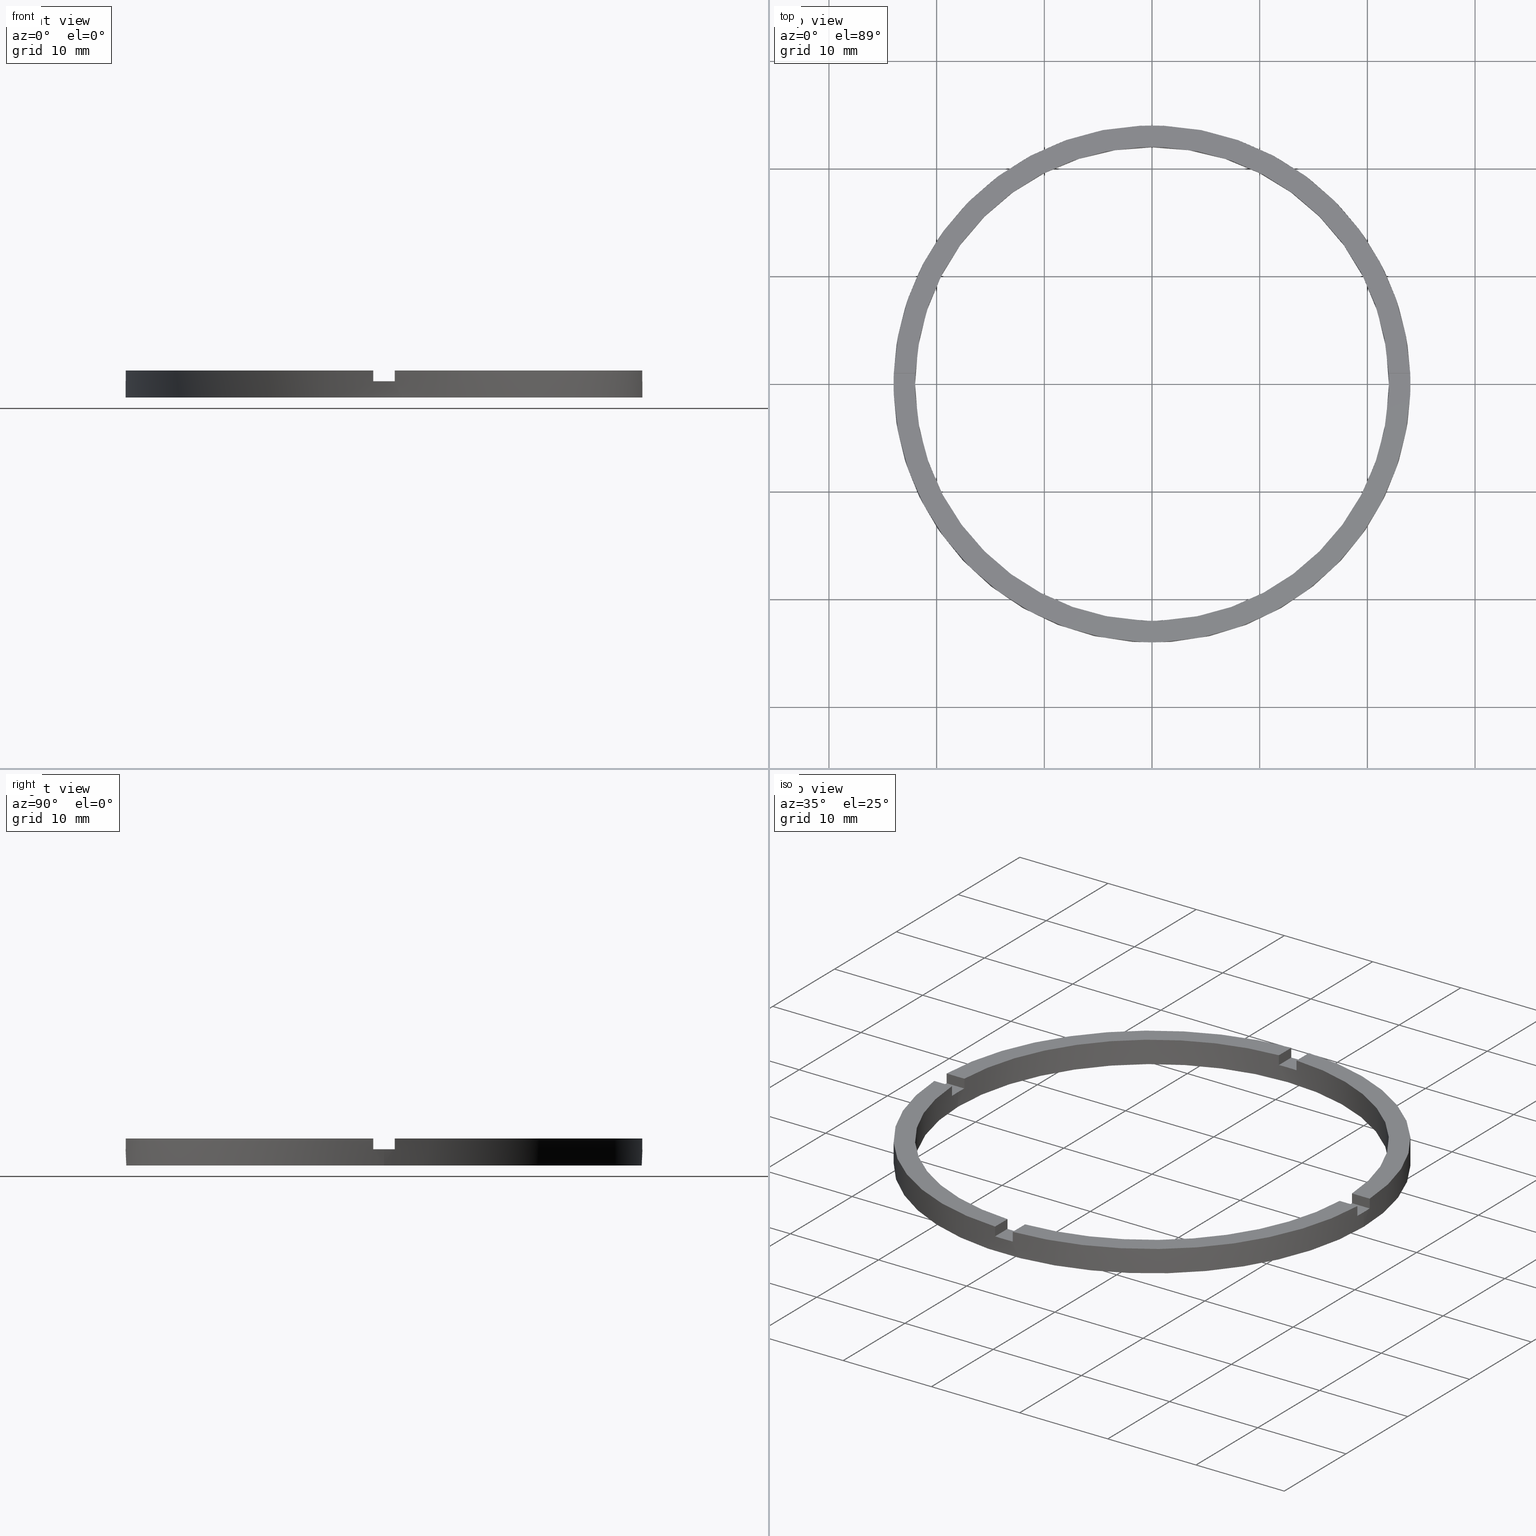
[diagram: canonical four-view strip — front | top / right | iso, engineering-drawing reading convention]
A machine part, canonical four-view strip (front | top / right | iso — engineering-drawing reading convention). The complete STEP part file that produces these views, byte-faithful:
ISO-10303-21;
HEADER;
FILE_DESCRIPTION (( 'STEP AP203' ),
    '1' );
FILE_NAME ('514101.step',
    '2024-12-26T02:37:36',
    ( 'MSI' ),
    ( '' ),
    'SwSTEP 2.0',
    'SolidWorks 2020',
    '' );
FILE_SCHEMA (( 'CONFIG_CONTROL_DESIGN' ));
ENDSEC;

DATA;
#1 = EDGE_LOOP ( 'NONE', ( #268, #686, #16, #49 ) ) ;
#2 = APPROVAL_DATE_TIME ( #488, #439 ) ;
#3 = CARTESIAN_POINT ( 'NONE',  ( -23.97915761656360445, -1.000000000000025757, 1.500000000000000000 ) ) ;
#4 = DIRECTION ( 'NONE',  ( 1.000000000000000000, 0.000000000000000000, 0.000000000000000000 ) ) ;
#5 = ORIENTED_EDGE ( 'NONE', *, *, #163, .F. ) ;
#6 = ORIENTED_EDGE ( 'NONE', *, *, #497, .F. ) ;
#7 = DIRECTION ( 'NONE',  ( -0.000000000000000000, -0.000000000000000000, -1.000000000000000000 ) ) ;
#8 = CARTESIAN_POINT ( 'NONE',  ( 0.000000000000000000, 0.000000000000000000, 1.500000000000000000 ) ) ;
#9 = CARTESIAN_POINT ( 'NONE',  ( 0.000000000000000000, 0.000000000000000000, 1.500000000000000000 ) ) ;
#10 = ORIENTED_EDGE ( 'NONE', *, *, #432, .T. ) ;
#11 = DIRECTION ( 'NONE',  ( 1.000000000000000000, 0.000000000000000000, -0.000000000000000000 ) ) ;
#12 = ADVANCED_FACE ( 'NONE', ( #549 ), #454, .F. ) ;
#13 = ORIENTED_EDGE ( 'NONE', *, *, #168, .F. ) ;
#14 = AXIS2_PLACEMENT_3D ( 'NONE', #671, #727, #461 ) ;
#15 = DIRECTION ( 'NONE',  ( -1.000000000000000000, 0.000000000000000000, 0.000000000000000000 ) ) ;
#16 = ORIENTED_EDGE ( 'NONE', *, *, #201, .F. ) ;
#17 = ORIENTED_EDGE ( 'NONE', *, *, #241, .F. ) ;
#18 = ORIENTED_EDGE ( 'NONE', *, *, #119, .F. ) ;
#19 = PRODUCT_RELATED_PRODUCT_CATEGORY ( 'detail', '', ( #725 ) ) ;
#20 = VERTEX_POINT ( 'NONE', #619 ) ;
#21 = CLOSED_SHELL ( 'NONE', ( #91, #144, #751, #493, #334, #107, #394, #263, #704, #662, #276, #659, #12, #351, #685, #39, #384, #655, #438, #445, #739 ) ) ;
#22 = ORIENTED_EDGE ( 'NONE', *, *, #511, .F. ) ;
#23 = VERTEX_POINT ( 'NONE', #3 ) ;
#24 = DIRECTION ( 'NONE',  ( -0.000000000000000000, 0.000000000000000000, 1.000000000000000000 ) ) ;
#25 = EDGE_LOOP ( 'NONE', ( #179, #390, #568, #711, #429, #437, #61, #478, #290, #676, #55, #783 ) ) ;
#26 = AXIS2_PLACEMENT_3D ( 'NONE', #609, #735, #311 ) ;
#27 = CARTESIAN_POINT ( 'NONE',  ( -1.000000000000025535, 21.97726097583590388, 2.500000000000000000 ) ) ;
#28 = DIRECTION ( 'NONE',  ( 1.000000000000000000, 0.000000000000000000, 0.000000000000000000 ) ) ;
#29 = ORIENTED_EDGE ( 'NONE', *, *, #466, .F. ) ;
#30 = CARTESIAN_POINT ( 'NONE',  ( -21.97726097583591098, 0.9999999999999744649, 2.500000000000000000 ) ) ;
#31 = EDGE_CURVE ( 'NONE', #273, #410, #32, .T. ) ;
#32 = CIRCLE ( 'NONE', #208, 22.00000000000000000 ) ;
#33 = ORIENTED_EDGE ( 'NONE', *, *, #119, .T. ) ;
#34 = DIRECTION ( 'NONE',  ( 0.000000000000000000, 0.000000000000000000, 1.000000000000000000 ) ) ;
#35 = APPLICATION_CONTEXT ( 'configuration controlled 3d designs of mechanical parts and assemblies' ) ;
#36 = ORIENTED_EDGE ( 'NONE', *, *, #678, .T. ) ;
#37 = DIRECTION ( 'NONE',  ( 1.000000000000000000, 0.000000000000000000, 0.000000000000000000 ) ) ;
#38 = ORIENTED_EDGE ( 'NONE', *, *, #746, .F. ) ;
#39 = ADVANCED_FACE ( 'NONE', ( #70 ), #587, .F. ) ;
#40 = EDGE_CURVE ( 'NONE', #572, #52, #575, .T. ) ;
#41 = DIRECTION ( 'NONE',  ( -1.000000000000000000, -1.301042606982605074E-16, 0.000000000000000000 ) ) ;
#42 = ORIENTED_EDGE ( 'NONE', *, *, #489, .F. ) ;
#43 = DIRECTION ( 'NONE',  ( -1.000000000000000000, -1.734723475976806848E-16, 0.000000000000000000 ) ) ;
#44 = ORIENTED_EDGE ( 'NONE', *, *, #184, .F. ) ;
#45 = LINE ( 'NONE', #695, #289 ) ;
#46 = EDGE_CURVE ( 'NONE', #228, #709, #305, .T. ) ;
#47 = VECTOR ( 'NONE', #166, 1000.000000000000000 ) ;
#48 = ORIENTED_EDGE ( 'NONE', *, *, #636, .T. ) ;
#49 = ORIENTED_EDGE ( 'NONE', *, *, #163, .T. ) ;
#50 = ORIENTED_EDGE ( 'NONE', *, *, #691, .T. ) ;
#51 = ORIENTED_EDGE ( 'NONE', *, *, #46, .T. ) ;
#52 = VERTEX_POINT ( 'NONE', #202 ) ;
#53 = FACE_OUTER_BOUND ( 'NONE', #279, .T. ) ;
#54 = AXIS2_PLACEMENT_3D ( 'NONE', #133, #177, #306 ) ;
#55 = ORIENTED_EDGE ( 'NONE', *, *, #641, .T. ) ;
#56 = CIRCLE ( 'NONE', #388, 22.00000000000000000 ) ;
#57 = AXIS2_PLACEMENT_3D ( 'NONE', #776, #65, #673 ) ;
#58 = CIRCLE ( 'NONE', #705, 22.00000000000000000 ) ;
#59 = EDGE_CURVE ( 'NONE', #395, #780, #296, .T. ) ;
#60 = ORIENTED_EDGE ( 'NONE', *, *, #59, .T. ) ;
#61 = ORIENTED_EDGE ( 'NONE', *, *, #71, .T. ) ;
#62 = CC_DESIGN_PERSON_AND_ORGANIZATION_ASSIGNMENT ( #752, #765, ( #407 ) ) ;
#63 = DIRECTION ( 'NONE',  ( 0.000000000000000000, 0.000000000000000000, 1.000000000000000000 ) ) ;
#64 = ORIENTED_EDGE ( 'NONE', *, *, #201, .T. ) ;
#65 = DIRECTION ( 'NONE',  ( 1.000000000000000000, -0.000000000000000000, 0.000000000000000000 ) ) ;
#66 = ORIENTED_EDGE ( 'NONE', *, *, #597, .T. ) ;
#67 = ORIENTED_EDGE ( 'NONE', *, *, #613, .F. ) ;
#68 = ORIENTED_EDGE ( 'NONE', *, *, #775, .T. ) ;
#69 = ORIENTED_EDGE ( 'NONE', *, *, #600, .T. ) ;
#70 = FACE_OUTER_BOUND ( 'NONE', #162, .T. ) ;
#71 = EDGE_CURVE ( 'NONE', #303, #392, #45, .T. ) ;
#72 = ORIENTED_EDGE ( 'NONE', *, *, #761, .T. ) ;
#73 = AXIS2_PLACEMENT_3D ( 'NONE', #150, #385, #467 ) ;
#74 = DIRECTION ( 'NONE',  ( 0.000000000000000000, 0.000000000000000000, 1.000000000000000000 ) ) ;
#75 = LINE ( 'NONE', #214, #596 ) ;
#76 = CIRCLE ( 'NONE', #651, 24.00000000000000355 ) ;
#77 = LINE ( 'NONE', #654, #333 ) ;
#78 = LINE ( 'NONE', #170, #337 ) ;
#79 = DIRECTION ( 'NONE',  ( 1.000000000000000000, 0.000000000000000000, -0.000000000000000000 ) ) ;
#80 = FACE_OUTER_BOUND ( 'NONE', #476, .T. ) ;
#81 = CIRCLE ( 'NONE', #14, 24.00000000000000355 ) ;
#82 = EDGE_LOOP ( 'NONE', ( #719, #183, #517, #443 ) ) ;
#83 = VECTOR ( 'NONE', #616, 1000.000000000000000 ) ;
#84 = DIRECTION ( 'NONE',  ( 1.000000000000000000, 0.000000000000000000, 0.000000000000000000 ) ) ;
#85 = CIRCLE ( 'NONE', #557, 24.00000000000000355 ) ;
#86 = CARTESIAN_POINT ( 'NONE',  ( 0.000000000000000000, 0.000000000000000000, 1.500000000000000000 ) ) ;
#87 = VECTOR ( 'NONE', #741, 1000.000000000000000 ) ;
#88 = VECTOR ( 'NONE', #149, 1000.000000000000000 ) ;
#89 = PLANE ( 'NONE',  #762 ) ;
#90 = CIRCLE ( 'NONE', #196, 24.00000000000000355 ) ;
#91 = ADVANCED_FACE ( 'NONE', ( #297 ), #570, .F. ) ;
#92 = CIRCLE ( 'NONE', #730, 24.00000000000000355 ) ;
#93 = PLANE ( 'NONE',  #73 ) ;
#94 = EDGE_CURVE ( 'NONE', #395, #410, #299, .T. ) ;
#95 = DIRECTION ( 'NONE',  ( 1.000000000000000000, 0.000000000000000000, -0.000000000000000000 ) ) ;
#96 = VECTOR ( 'NONE', #464, 1000.000000000000000 ) ;
#97 = FACE_OUTER_BOUND ( 'NONE', #82, .T. ) ;
#98 = LINE ( 'NONE', #601, #350 ) ;
#99 = FACE_BOUND ( 'NONE', #307, .T. ) ;
#100 = CARTESIAN_POINT ( 'NONE',  ( 23.97915761656361155, 0.9999999999998423483, 1.500000000000000000 ) ) ;
#101 = VECTOR ( 'NONE', #581, 1000.000000000000000 ) ;
#102 = VECTOR ( 'NONE', #165, 1000.000000000000000 ) ;
#103 = LINE ( 'NONE', #689, #87 ) ;
#104 = CIRCLE ( 'NONE', #462, 24.00000000000000355 ) ;
#105 = CARTESIAN_POINT ( 'NONE',  ( -1.000000000000025979, 14.00000000000000355, 1.500000000000000000 ) ) ;
#106 = CIRCLE ( 'NONE', #453, 22.00000000000000000 ) ;
#107 = ADVANCED_FACE ( 'NONE', ( #53 ), #749, .T. ) ;
#108 = FACE_OUTER_BOUND ( 'NONE', #1, .T. ) ;
#109 = LINE ( 'NONE', #323, #363 ) ;
#110 = CIRCLE ( 'NONE', #736, 22.00000000000000000 ) ;
#111 = CC_DESIGN_DATE_AND_TIME_ASSIGNMENT ( #483, #412, ( #407 ) ) ;
#112 = DIRECTION ( 'NONE',  ( -1.000000000000000000, -1.734723475976806848E-16, 0.000000000000000000 ) ) ;
#113 = LINE ( 'NONE', #159, #642 ) ;
#114 = VECTOR ( 'NONE', #246, 1000.000000000000000 ) ;
#115 = VECTOR ( 'NONE', #112, 1000.000000000000000 ) ;
#116 = DIRECTION ( 'NONE',  ( 0.000000000000000000, 0.000000000000000000, 1.000000000000000000 ) ) ;
#117 = MECHANICAL_CONTEXT ( 'NONE', #35, 'mechanical' ) ;
#118 = VECTOR ( 'NONE', #151, 1000.000000000000000 ) ;
#119 = EDGE_CURVE ( 'NONE', #140, #327, #573, .T. ) ;
#120 = DIRECTION ( 'NONE',  ( 1.000000000000000000, 4.336808689942017120E-17, 0.000000000000000000 ) ) ;
#121 = FACE_OUTER_BOUND ( 'NONE', #145, .T. ) ;
#122 = VECTOR ( 'NONE', #732, 1000.000000000000000 ) ;
#123 = LINE ( 'NONE', #341, #114 ) ;
#124 = CARTESIAN_POINT ( 'NONE',  ( 0.000000000000000000, 0.000000000000000000, 0.000000000000000000 ) ) ;
#125 = DIRECTION ( 'NONE',  ( 1.000000000000000000, 0.000000000000000000, -0.000000000000000000 ) ) ;
#126 = CARTESIAN_POINT ( 'NONE',  ( 0.000000000000000000, 0.000000000000000000, 2.500000000000000000 ) ) ;
#127 = CARTESIAN_POINT ( 'NONE',  ( 0.000000000000000000, 0.000000000000000000, 2.500000000000000000 ) ) ;
#128 = EDGE_CURVE ( 'NONE', #321, #567, #56, .T. ) ;
#129 = APPROVAL_ROLE ( '' ) ;
#130 = EDGE_CURVE ( 'NONE', #427, #132, #58, .T. ) ;
#131 = DIRECTION ( 'NONE',  ( -1.301042606982605074E-16, 1.000000000000000000, -0.000000000000000000 ) ) ;
#132 = VERTEX_POINT ( 'NONE', #408 ) ;
#133 = CARTESIAN_POINT ( 'NONE',  ( 0.000000000000000000, 0.000000000000000000, 1.500000000000000000 ) ) ;
#134 = ORIENTED_EDGE ( 'NONE', *, *, #270, .T. ) ;
#135 =( GEOMETRIC_REPRESENTATION_CONTEXT ( 3 ) GLOBAL_UNCERTAINTY_ASSIGNED_CONTEXT ( ( #546 ) ) GLOBAL_UNIT_ASSIGNED_CONTEXT ( ( #292, #605, #373 ) ) REPRESENTATION_CONTEXT ( 'NONE', 'WORKASPACE' ) );
#136 = EDGE_CURVE ( 'NONE', #228, #146, #312, .T. ) ;
#137 = ORIENTED_EDGE ( 'NONE', *, *, #31, .T. ) ;
#138 = CARTESIAN_POINT ( 'NONE',  ( -24.00000000000000355, 0.000000000000000000, 0.000000000000000000 ) ) ;
#139 = AXIS2_PLACEMENT_3D ( 'NONE', #504, #41, #442 ) ;
#140 = VERTEX_POINT ( 'NONE', #420 ) ;
#141 = ORIENTED_EDGE ( 'NONE', *, *, #613, .T. ) ;
#142 = DIRECTION ( 'NONE',  ( -1.000000000000000000, 0.000000000000000000, 0.000000000000000000 ) ) ;
#143 = EDGE_LOOP ( 'NONE', ( #271, #558, #538, #535, #38, #304, #516, #428, #6, #512, #5, #518 ) ) ;
#144 = ADVANCED_FACE ( 'NONE', ( #578 ), #580, .T. ) ;
#145 = EDGE_LOOP ( 'NONE', ( #189, #714, #715, #523, #563, #51 ) ) ;
#146 = VERTEX_POINT ( 'NONE', #418 ) ;
#147 = CARTESIAN_POINT ( 'NONE',  ( 22.00000000000000000, 2.694222958124176809E-15, 1.500000000000000000 ) ) ;
#148 = DIRECTION ( 'NONE',  ( 1.000000000000000000, 0.000000000000000000, 0.000000000000000000 ) ) ;
#149 = DIRECTION ( 'NONE',  ( -0.000000000000000000, -0.000000000000000000, -1.000000000000000000 ) ) ;
#150 = CARTESIAN_POINT ( 'NONE',  ( -1.000000000000025979, 14.00000000000000355, 1.500000000000000000 ) ) ;
#151 = DIRECTION ( 'NONE',  ( 0.000000000000000000, 0.000000000000000000, 1.000000000000000000 ) ) ;
#152 = DIRECTION ( 'NONE',  ( 0.000000000000000000, 0.000000000000000000, 1.000000000000000000 ) ) ;
#153 = DIRECTION ( 'NONE',  ( 1.000000000000000000, 0.000000000000000000, 0.000000000000000000 ) ) ;
#154 = DIRECTION ( 'NONE',  ( -1.734723475976806848E-16, 1.000000000000000000, 0.000000000000000000 ) ) ;
#155 = CARTESIAN_POINT ( 'NONE',  ( 0.9999999999999735767, 23.97915761656360090, 2.500000000000000000 ) ) ;
#156 = PLANE ( 'NONE',  #139 ) ;
#157 = DIRECTION ( 'NONE',  ( 1.000000000000000000, 0.000000000000000000, 0.000000000000000000 ) ) ;
#158 = EDGE_CURVE ( 'NONE', #564, #23, #361, .T. ) ;
#159 = CARTESIAN_POINT ( 'NONE',  ( -22.00000000000000000, 0.000000000000000000, 2.500000000000000000 ) ) ;
#160 = AXIS2_PLACEMENT_3D ( 'NONE', #530, #376, #417 ) ;
#161 = ORIENTED_EDGE ( 'NONE', *, *, #40, .F. ) ;
#162 = EDGE_LOOP ( 'NONE', ( #64, #182, #527, #42 ) ) ;
#163 = EDGE_CURVE ( 'NONE', #747, #552, #81, .T. ) ;
#164 = PERSON_AND_ORGANIZATION_ROLE ( 'design_owner' ) ;
#165 = DIRECTION ( 'NONE',  ( -0.000000000000000000, -0.000000000000000000, -1.000000000000000000 ) ) ;
#166 = DIRECTION ( 'NONE',  ( -0.000000000000000000, -0.000000000000000000, -1.000000000000000000 ) ) ;
#167 = DIRECTION ( 'NONE',  ( 1.000000000000000000, 0.000000000000000000, 0.000000000000000000 ) ) ;
#168 = EDGE_CURVE ( 'NONE', #389, #185, #92, .T. ) ;
#169 = VERTEX_POINT ( 'NONE', #539 ) ;
#170 = CARTESIAN_POINT ( 'NONE',  ( 0.9999999999998393507, -23.97915761656361155, 2.500000000000000000 ) ) ;
#171 = CARTESIAN_POINT ( 'NONE',  ( 0.000000000000000000, 0.000000000000000000, 2.500000000000000000 ) ) ;
#172 = DIRECTION ( 'NONE',  ( 0.000000000000000000, 0.000000000000000000, 1.000000000000000000 ) ) ;
#173 = EDGE_CURVE ( 'NONE', #215, #224, #615, .T. ) ;
#174 = ORIENTED_EDGE ( 'NONE', *, *, #425, .F. ) ;
#175 = DIRECTION ( 'NONE',  ( 4.336808689942017120E-17, -1.000000000000000000, 0.000000000000000000 ) ) ;
#176 = DIRECTION ( 'NONE',  ( -0.000000000000000000, -0.000000000000000000, -1.000000000000000000 ) ) ;
#177 = DIRECTION ( 'NONE',  ( 0.000000000000000000, 0.000000000000000000, 1.000000000000000000 ) ) ;
#178 = EDGE_CURVE ( 'NONE', #215, #716, #104, .T. ) ;
#179 = ORIENTED_EDGE ( 'NONE', *, *, #536, .F. ) ;
#180 = ORIENTED_EDGE ( 'NONE', *, *, #423, .F. ) ;
#181 = DIRECTION ( 'NONE',  ( 0.000000000000000000, -0.000000000000000000, 1.000000000000000000 ) ) ;
#182 = ORIENTED_EDGE ( 'NONE', *, *, #466, .T. ) ;
#183 = ORIENTED_EDGE ( 'NONE', *, *, #554, .T. ) ;
#184 = EDGE_CURVE ( 'NONE', #224, #591, #75, .T. ) ;
#185 = VERTEX_POINT ( 'NONE', #138 ) ;
#186 = CARTESIAN_POINT ( 'NONE',  ( 0.000000000000000000, 0.000000000000000000, 1.500000000000000000 ) ) ;
#187 = ORIENTED_EDGE ( 'NONE', *, *, #378, .F. ) ;
#188 = AXIS2_PLACEMENT_3D ( 'NONE', #402, #764, #745 ) ;
#189 = ORIENTED_EDGE ( 'NONE', *, *, #401, .T. ) ;
#190 = CARTESIAN_POINT ( 'NONE',  ( -1.000000000000025535, 21.97726097583590388, 1.500000000000000000 ) ) ;
#191 = CC_DESIGN_PERSON_AND_ORGANIZATION_ASSIGNMENT ( #768, #284, ( #702 ) ) ;
#192 = DIRECTION ( 'NONE',  ( 1.000000000000000000, 1.734723475976806848E-16, 0.000000000000000000 ) ) ;
#193 = AXIS2_PLACEMENT_3D ( 'NONE', #8, #181, #79 ) ;
#194 = EDGE_CURVE ( 'NONE', #470, #392, #592, .T. ) ;
#195 = CARTESIAN_POINT ( 'NONE',  ( -1.000000000000160538, -21.97726097583589677, 1.500000000000000000 ) ) ;
#196 = AXIS2_PLACEMENT_3D ( 'NONE', #708, #701, #37 ) ;
#197 = CARTESIAN_POINT ( 'NONE',  ( 21.97726097583591809, 0.9999999999998421263, 1.500000000000000000 ) ) ;
#198 = DIRECTION ( 'NONE',  ( 0.000000000000000000, 0.000000000000000000, 1.000000000000000000 ) ) ;
#199 = DIRECTION ( 'NONE',  ( 0.000000000000000000, 0.000000000000000000, 1.000000000000000000 ) ) ;
#200 = CARTESIAN_POINT ( 'NONE',  ( 0.000000000000000000, 0.000000000000000000, 2.500000000000000000 ) ) ;
#201 = EDGE_CURVE ( 'NONE', #747, #668, #335, .T. ) ;
#202 = CARTESIAN_POINT ( 'NONE',  ( -21.97726097583590743, -1.000000000000025535, 1.500000000000000000 ) ) ;
#203 = APPROVAL_STATUS ( 'not_yet_approved' ) ;
#204 = DIRECTION ( 'NONE',  ( 1.000000000000000000, 0.000000000000000000, 0.000000000000000000 ) ) ;
#205 = DIRECTION ( 'NONE',  ( 1.000000000000000000, 0.000000000000000000, 0.000000000000000000 ) ) ;
#206 = CARTESIAN_POINT ( 'NONE',  ( -23.97915761656360445, -1.000000000000025757, 2.500000000000000000 ) ) ;
#207 = AXIS2_PLACEMENT_3D ( 'NONE', #411, #210, #366 ) ;
#208 = AXIS2_PLACEMENT_3D ( 'NONE', #778, #444, #281 ) ;
#209 = CARTESIAN_POINT ( 'NONE',  ( -1.000000000000025979, 23.97915761656360445, 2.500000000000000000 ) ) ;
#210 = DIRECTION ( 'NONE',  ( 0.000000000000000000, 0.000000000000000000, 1.000000000000000000 ) ) ;
#211 = DIRECTION ( 'NONE',  ( 0.000000000000000000, -0.000000000000000000, 1.000000000000000000 ) ) ;
#212 = CC_DESIGN_APPROVAL ( #439, ( #262 ) ) ;
#213 = EDGE_LOOP ( 'NONE', ( #134, #431, #247, #180 ) ) ;
#214 = CARTESIAN_POINT ( 'NONE',  ( 0.9999999999998391287, -21.97726097583591809, 2.500000000000000000 ) ) ;
#215 = VERTEX_POINT ( 'NONE', #682 ) ;
#216 = LOCAL_TIME ( 10, 37, 36.00000000000000000, #220 ) ;
#217 = CC_DESIGN_PERSON_AND_ORGANIZATION_ASSIGNMENT ( #777, #164, ( #725 ) ) ;
#218 = CARTESIAN_POINT ( 'NONE',  ( 0.9999999999998380185, -14.00000000000018474, 1.500000000000000000 ) ) ;
#219 = CARTESIAN_POINT ( 'NONE',  ( 0.000000000000000000, 0.000000000000000000, 2.500000000000000000 ) ) ;
#220 = COORDINATED_UNIVERSAL_TIME_OFFSET ( 8, 0, .AHEAD. ) ;
#221 = EDGE_CURVE ( 'NONE', #481, #583, #76, .T. ) ;
#222 = VERTEX_POINT ( 'NONE', #195 ) ;
#223 = PERSON_AND_ORGANIZATION ( #422, #767 ) ;
#224 = VERTEX_POINT ( 'NONE', #556 ) ;
#225 = EDGE_LOOP ( 'NONE', ( #50, #325, #398, #67, #69, #161, #66, #294, #413, #44, #293, #419 ) ) ;
#226 = CARTESIAN_POINT ( 'NONE',  ( -1.000000000000025535, 23.97915761656360090, 2.500000000000000000 ) ) ;
#227 = CARTESIAN_POINT ( 'NONE',  ( 0.9999999999998380185, -14.00000000000018474, 2.500000000000000000 ) ) ;
#228 = VERTEX_POINT ( 'NONE', #480 ) ;
#229 = DIRECTION ( 'NONE',  ( 0.000000000000000000, 0.000000000000000000, 1.000000000000000000 ) ) ;
#230 = COORDINATED_UNIVERSAL_TIME_OFFSET ( 8, 0, .AHEAD. ) ;
#231 = COORDINATED_UNIVERSAL_TIME_OFFSET ( 8, 0, .AHEAD. ) ;
#232 = APPROVAL_PERSON_ORGANIZATION ( #235, #344, #660 ) ;
#233 = APPROVAL_PERSON_ORGANIZATION ( #760, #439, #129 ) ;
#234 = CARTESIAN_POINT ( 'NONE',  ( -23.97915761656360445, 0.9999999999999742428, 2.500000000000000000 ) ) ;
#235 = PERSON_AND_ORGANIZATION ( #422, #767 ) ;
#236 = DIRECTION ( 'NONE',  ( 0.000000000000000000, 0.000000000000000000, 1.000000000000000000 ) ) ;
#237 = CALENDAR_DATE ( 2024, 26, 12 ) ;
#238 = CARTESIAN_POINT ( 'NONE',  ( -1.000000000000025979, 14.00000000000000355, 2.500000000000000000 ) ) ;
#239 = DATE_AND_TIME ( #472, #774 ) ;
#240 = CARTESIAN_POINT ( 'NONE',  ( 0.000000000000000000, 0.000000000000000000, 2.500000000000000000 ) ) ;
#241 = EDGE_CURVE ( 'NONE', #140, #757, #625, .T. ) ;
#242 = LOCAL_TIME ( 10, 37, 36.00000000000000000, #509 ) ;
#243 = CARTESIAN_POINT ( 'NONE',  ( -1.000000000000160538, -21.97726097583589677, 2.500000000000000000 ) ) ;
#244 = ORIENTED_EDGE ( 'NONE', *, *, #446, .F. ) ;
#245 = PERSON_AND_ORGANIZATION ( #422, #767 ) ;
#246 = DIRECTION ( 'NONE',  ( 0.000000000000000000, 1.000000000000000000, 0.000000000000000000 ) ) ;
#247 = ORIENTED_EDGE ( 'NONE', *, *, #761, .F. ) ;
#248 = LOCAL_TIME ( 10, 37, 36.00000000000000000, #230 ) ;
#249 = AXIS2_PLACEMENT_3D ( 'NONE', #498, #211, #157 ) ;
#250 = ORIENTED_EDGE ( 'NONE', *, *, #473, .F. ) ;
#251 = CALENDAR_DATE ( 2024, 26, 12 ) ;
#252 = CARTESIAN_POINT ( 'NONE',  ( 0.000000000000000000, 0.000000000000000000, 2.500000000000000000 ) ) ;
#253 = ORIENTED_EDGE ( 'NONE', *, *, #425, .T. ) ;
#254 = CARTESIAN_POINT ( 'NONE',  ( 0.9999999999999740208, 14.00000000000000355, 1.500000000000000000 ) ) ;
#255 = ORIENTED_EDGE ( 'NONE', *, *, #403, .F. ) ;
#256 = CARTESIAN_POINT ( 'NONE',  ( 0.9999999999998386846, -21.97726097583591454, 1.500000000000000000 ) ) ;
#257 = ORIENTED_EDGE ( 'NONE', *, *, #542, .T. ) ;
#258 = EDGE_LOOP ( 'NONE', ( #318, #526, #528, #187 ) ) ;
#259 = AXIS2_PLACEMENT_3D ( 'NONE', #495, #699, #455 ) ;
#260 = DIRECTION ( 'NONE',  ( 1.734723475976806848E-16, -1.000000000000000000, 0.000000000000000000 ) ) ;
#261 = EDGE_CURVE ( 'NONE', #757, #552, #103, .T. ) ;
#262 = PRODUCT_DEFINITION_FORMATION_WITH_SPECIFIED_SOURCE ( '�κ�', '', #725, .NOT_KNOWN. ) ;
#263 = ADVANCED_FACE ( 'NONE', ( #627 ), #360, .T. ) ;
#264 = CARTESIAN_POINT ( 'NONE',  ( 13.99999999999999822, -1.000000000000158096, 1.500000000000000000 ) ) ;
#265 = ORIENTED_EDGE ( 'NONE', *, *, #672, .T. ) ;
#266 = ORIENTED_EDGE ( 'NONE', *, *, #724, .T. ) ;
#267 = CARTESIAN_POINT ( 'NONE',  ( 0.000000000000000000, 0.000000000000000000, 2.500000000000000000 ) ) ;
#268 = ORIENTED_EDGE ( 'NONE', *, *, #672, .F. ) ;
#269 = AXIS2_PLACEMENT_3D ( 'NONE', #656, #329, #387 ) ;
#270 = EDGE_CURVE ( 'NONE', #766, #572, #624, .T. ) ;
#271 = ORIENTED_EDGE ( 'NONE', *, *, #221, .F. ) ;
#272 = ORIENTED_EDGE ( 'NONE', *, *, #497, .T. ) ;
#273 = VERTEX_POINT ( 'NONE', #27 ) ;
#274 = ORIENTED_EDGE ( 'NONE', *, *, #178, .T. ) ;
#275 = CARTESIAN_POINT ( 'NONE',  ( -23.97915761656360445, 0.9999999999999742428, 1.500000000000000000 ) ) ;
#276 = ADVANCED_FACE ( 'NONE', ( #332 ), #89, .F. ) ;
#277 = ORIENTED_EDGE ( 'NONE', *, *, #406, .F. ) ;
#278 = CARTESIAN_POINT ( 'NONE',  ( -1.000000000000025535, 23.97915761656360090, 1.500000000000000000 ) ) ;
#279 = EDGE_LOOP ( 'NONE', ( #308, #551, #524, #68 ) ) ;
#280 = EDGE_LOOP ( 'NONE', ( #272, #586, #18, #692 ) ) ;
#281 = DIRECTION ( 'NONE',  ( 1.000000000000000000, 0.000000000000000000, 0.000000000000000000 ) ) ;
#282 = CARTESIAN_POINT ( 'NONE',  ( 0.9999999999999735767, 23.97915761656360090, 1.500000000000000000 ) ) ;
#283 = CARTESIAN_POINT ( 'NONE',  ( -23.97915761656360445, -1.000000000000025757, 2.500000000000000000 ) ) ;
#284 = PERSON_AND_ORGANIZATION_ROLE ( 'creator' ) ;
#285 = DIRECTION ( 'NONE',  ( -0.000000000000000000, -0.000000000000000000, -1.000000000000000000 ) ) ;
#286 = CARTESIAN_POINT ( 'NONE',  ( 0.000000000000000000, 0.000000000000000000, 1.500000000000000000 ) ) ;
#287 = EDGE_CURVE ( 'NONE', #185, #389, #358, .T. ) ;
#288 = AXIS2_PLACEMENT_3D ( 'NONE', #240, #569, #317 ) ;
#289 = VECTOR ( 'NONE', #604, 1000.000000000000000 ) ;
#290 = ORIENTED_EDGE ( 'NONE', *, *, #423, .T. ) ;
#291 = EDGE_LOOP ( 'NONE', ( #17, #560, #265, #532 ) ) ;
#292 =( LENGTH_UNIT ( ) NAMED_UNIT ( * ) SI_UNIT ( .MILLI., .METRE. ) );
#293 = ORIENTED_EDGE ( 'NONE', *, *, #406, .T. ) ;
#294 = ORIENTED_EDGE ( 'NONE', *, *, #554, .F. ) ;
#295 = DIRECTION ( 'NONE',  ( 1.000000000000000000, 4.336808689942017120E-17, 0.000000000000000000 ) ) ;
#296 = LINE ( 'NONE', #710, #561 ) ;
#297 = FACE_OUTER_BOUND ( 'NONE', #225, .T. ) ;
#298 = CARTESIAN_POINT ( 'NONE',  ( 0.000000000000000000, 0.000000000000000000, 2.500000000000000000 ) ) ;
#299 = LINE ( 'NONE', #30, #310 ) ;
#300 = AXIS2_PLACEMENT_3D ( 'NONE', #252, #396, #15 ) ;
#301 = ORIENTED_EDGE ( 'NONE', *, *, #31, .F. ) ;
#302 = CARTESIAN_POINT ( 'NONE',  ( -1.000000000000162093, -14.00000000000018474, 2.500000000000000000 ) ) ;
#303 = VERTEX_POINT ( 'NONE', #734 ) ;
#304 = ORIENTED_EDGE ( 'NONE', *, *, #737, .T. ) ;
#305 = LINE ( 'NONE', #264, #314 ) ;
#306 = DIRECTION ( 'NONE',  ( 1.000000000000000000, 0.000000000000000000, 0.000000000000000000 ) ) ;
#307 = EDGE_LOOP ( 'NONE', ( #322, #707 ) ) ;
#308 = ORIENTED_EDGE ( 'NONE', *, *, #194, .F. ) ;
#309 = ORIENTED_EDGE ( 'NONE', *, *, #731, .T. ) ;
#310 = VECTOR ( 'NONE', #405, 1000.000000000000000 ) ;
#311 = DIRECTION ( 'NONE',  ( 1.000000000000000000, 0.000000000000000000, 0.000000000000000000 ) ) ;
#312 = LINE ( 'NONE', #372, #576 ) ;
#313 = DIRECTION ( 'NONE',  ( 1.000000000000000000, 0.000000000000000000, 0.000000000000000000 ) ) ;
#314 = VECTOR ( 'NONE', #487, 1000.000000000000000 ) ;
#315 = CARTESIAN_POINT ( 'NONE',  ( 0.000000000000000000, 0.000000000000000000, 0.000000000000000000 ) ) ;
#316 = ORIENTED_EDGE ( 'NONE', *, *, #94, .F. ) ;
#317 = DIRECTION ( 'NONE',  ( 1.000000000000000000, 0.000000000000000000, -0.000000000000000000 ) ) ;
#318 = ORIENTED_EDGE ( 'NONE', *, *, #46, .F. ) ;
#319 = ORIENTED_EDGE ( 'NONE', *, *, #173, .T. ) ;
#320 = ORIENTED_EDGE ( 'NONE', *, *, #342, .F. ) ;
#321 = VERTEX_POINT ( 'NONE', #147 ) ;
#322 = ORIENTED_EDGE ( 'NONE', *, *, #130, .T. ) ;
#323 = CARTESIAN_POINT ( 'NONE',  ( -1.000000000000025979, 21.97726097583590743, 2.500000000000000000 ) ) ;
#324 = ORIENTED_EDGE ( 'NONE', *, *, #595, .F. ) ;
#325 = ORIENTED_EDGE ( 'NONE', *, *, #342, .T. ) ;
#326 = DIRECTION ( 'NONE',  ( -1.000000000000000000, -1.734723475976806848E-16, 0.000000000000000000 ) ) ;
#327 = VERTEX_POINT ( 'NONE', #190 ) ;
#328 = VECTOR ( 'NONE', #644, 1000.000000000000000 ) ;
#329 = DIRECTION ( 'NONE',  ( 0.000000000000000000, 0.000000000000000000, 1.000000000000000000 ) ) ;
#330 = CIRCLE ( 'NONE', #207, 24.00000000000000355 ) ;
#331 = CARTESIAN_POINT ( 'NONE',  ( 0.000000000000000000, 0.000000000000000000, 0.000000000000000000 ) ) ;
#332 = FACE_OUTER_BOUND ( 'NONE', #756, .T. ) ;
#333 = VECTOR ( 'NONE', #744, 1000.000000000000000 ) ;
#334 = ADVANCED_FACE ( 'NONE', ( #80 ), #436, .T. ) ;
#335 = LINE ( 'NONE', #543, #345 ) ;
#336 = DIRECTION ( 'NONE',  ( 1.000000000000000000, 0.000000000000000000, 0.000000000000000000 ) ) ;
#337 = VECTOR ( 'NONE', #285, 1000.000000000000000 ) ;
#338 = FACE_OUTER_BOUND ( 'NONE', #291, .T. ) ;
#339 = CARTESIAN_POINT ( 'NONE',  ( 0.000000000000000000, 0.000000000000000000, 0.000000000000000000 ) ) ;
#340 = LINE ( 'NONE', #769, #88 ) ;
#341 = CARTESIAN_POINT ( 'NONE',  ( 0.9999999999999740208, 14.00000000000000355, 2.500000000000000000 ) ) ;
#342 = EDGE_CURVE ( 'NONE', #321, #132, #77, .T. ) ;
#343 = LINE ( 'NONE', #758, #354 ) ;
#344 = APPROVAL ( #594, 'δָ��' ) ;
#345 = VECTOR ( 'NONE', #630, 1000.000000000000000 ) ;
#346 = ORIENTED_EDGE ( 'NONE', *, *, #678, .F. ) ;
#347 = DIRECTION ( 'NONE',  ( 0.000000000000000000, 0.000000000000000000, 1.000000000000000000 ) ) ;
#348 = FACE_OUTER_BOUND ( 'NONE', #258, .T. ) ;
#349 = VECTOR ( 'NONE', #404, 1000.000000000000000 ) ;
#350 = VECTOR ( 'NONE', #666, 1000.000000000000000 ) ;
#351 = ADVANCED_FACE ( 'NONE', ( #97 ), #156, .F. ) ;
#352 = AXIS2_PLACEMENT_3D ( 'NONE', #126, #726, #355 ) ;
#353 = EDGE_CURVE ( 'NONE', #222, #591, #602, .T. ) ;
#354 = VECTOR ( 'NONE', #120, 1000.000000000000000 ) ;
#355 = DIRECTION ( 'NONE',  ( 1.000000000000000000, 0.000000000000000000, -0.000000000000000000 ) ) ;
#356 = LINE ( 'NONE', #238, #637 ) ;
#357 = VECTOR ( 'NONE', #713, 1000.000000000000000 ) ;
#358 = CIRCLE ( 'NONE', #435, 24.00000000000000355 ) ;
#359 = EDGE_LOOP ( 'NONE', ( #257, #36, #525, #409 ) ) ;
#360 = CYLINDRICAL_SURFACE ( 'NONE', #300, 24.00000000000000355 ) ;
#361 = CIRCLE ( 'NONE', #26, 24.00000000000000355 ) ;
#362 = LINE ( 'NONE', #683, #122 ) ;
#363 = VECTOR ( 'NONE', #653, 1000.000000000000000 ) ;
#364 = FACE_OUTER_BOUND ( 'NONE', #533, .T. ) ;
#365 = DIRECTION ( 'NONE',  ( -0.000000000000000000, -0.000000000000000000, -1.000000000000000000 ) ) ;
#366 = DIRECTION ( 'NONE',  ( 1.000000000000000000, 0.000000000000000000, 0.000000000000000000 ) ) ;
#367 = PERSON_AND_ORGANIZATION_ROLE ( 'design_supplier' ) ;
#368 = FACE_OUTER_BOUND ( 'NONE', #213, .T. ) ;
#369 = FACE_OUTER_BOUND ( 'NONE', #537, .T. ) ;
#370 = FACE_OUTER_BOUND ( 'NONE', #664, .T. ) ;
#371 = CARTESIAN_POINT ( 'NONE',  ( -1.000000000000160316, -23.97915761656359379, 2.500000000000000000 ) ) ;
#372 = CARTESIAN_POINT ( 'NONE',  ( 21.97726097583590388, -1.000000000000157874, 2.500000000000000000 ) ) ;
#373 =( NAMED_UNIT ( * ) SI_UNIT ( $, .STERADIAN. ) SOLID_ANGLE_UNIT ( ) );
#374 = CIRCLE ( 'NONE', #612, 22.00000000000000000 ) ;
#375 = LINE ( 'NONE', #105, #648 ) ;
#376 = DIRECTION ( 'NONE',  ( 0.000000000000000000, 0.000000000000000000, 1.000000000000000000 ) ) ;
#377 = CARTESIAN_POINT ( 'NONE',  ( 23.97915761656361155, 0.9999999999998423483, 2.500000000000000000 ) ) ;
#378 = EDGE_CURVE ( 'NONE', #709, #716, #628, .T. ) ;
#379 = AXIS2_PLACEMENT_3D ( 'NONE', #86, #199, #95 ) ;
#380 = DIRECTION ( 'NONE',  ( -0.000000000000000000, 0.000000000000000000, 1.000000000000000000 ) ) ;
#381 = AXIS2_PLACEMENT_3D ( 'NONE', #415, #176, #142 ) ;
#382 = CARTESIAN_POINT ( 'NONE',  ( -14.00000000000019007, -1.000000000000023981, 2.500000000000000000 ) ) ;
#383 = CC_DESIGN_PERSON_AND_ORGANIZATION_ASSIGNMENT ( #748, #367, ( #262 ) ) ;
#384 = ADVANCED_FACE ( 'NONE', ( #348 ), #622, .F. ) ;
#385 = DIRECTION ( 'NONE',  ( -1.000000000000000000, 0.000000000000000000, 0.000000000000000000 ) ) ;
#386 = APPROVAL ( #203, 'δָ��' ) ;
#387 = DIRECTION ( 'NONE',  ( 1.000000000000000000, 0.000000000000000000, 0.000000000000000000 ) ) ;
#388 = AXIS2_PLACEMENT_3D ( 'NONE', #286, #116, #205 ) ;
#389 = VERTEX_POINT ( 'NONE', #677 ) ;
#390 = ORIENTED_EDGE ( 'NONE', *, *, #401, .F. ) ;
#391 = VERTEX_POINT ( 'NONE', #226 ) ;
#392 = VERTEX_POINT ( 'NONE', #371 ) ;
#393 = CARTESIAN_POINT ( 'NONE',  ( -14.00000000000019007, 0.9999999999999759082, 2.500000000000000000 ) ) ;
#394 = ADVANCED_FACE ( 'NONE', ( #617, #99 ), #782, .F. ) ;
#395 = VERTEX_POINT ( 'NONE', #679 ) ;
#396 = DIRECTION ( 'NONE',  ( -0.000000000000000000, -0.000000000000000000, -1.000000000000000000 ) ) ;
#397 = DIRECTION ( 'NONE',  ( 1.000000000000000000, 0.000000000000000000, 0.000000000000000000 ) ) ;
#398 = ORIENTED_EDGE ( 'NONE', *, *, #130, .F. ) ;
#399 = APPLICATION_PROTOCOL_DEFINITION ( 'international standard', 'config_control_design', 1994, #35 ) ;
#400 = DIRECTION ( 'NONE',  ( 0.000000000000000000, 0.000000000000000000, 1.000000000000000000 ) ) ;
#401 = EDGE_CURVE ( 'NONE', #709, #481, #330, .T. ) ;
#402 = CARTESIAN_POINT ( 'NONE',  ( 0.000000000000000000, 0.000000000000000000, 2.500000000000000000 ) ) ;
#403 = EDGE_CURVE ( 'NONE', #215, #20, #78, .T. ) ;
#404 = DIRECTION ( 'NONE',  ( -1.301042606982605074E-16, 1.000000000000000000, -0.000000000000000000 ) ) ;
#405 = DIRECTION ( 'NONE',  ( 0.000000000000000000, 0.000000000000000000, 1.000000000000000000 ) ) ;
#406 = EDGE_CURVE ( 'NONE', #224, #146, #106, .T. ) ;
#407 = SECURITY_CLASSIFICATION ( '', '', #450 ) ;
#408 = CARTESIAN_POINT ( 'NONE',  ( 22.00000000000000000, 2.694222958124176809E-15, 0.000000000000000000 ) ) ;
#409 = ORIENTED_EDGE ( 'NONE', *, *, #460, .F. ) ;
#410 = VERTEX_POINT ( 'NONE', #603 ) ;
#411 = CARTESIAN_POINT ( 'NONE',  ( 0.000000000000000000, 0.000000000000000000, 1.500000000000000000 ) ) ;
#412 = DATE_TIME_ROLE ( 'classification_date' ) ;
#413 = ORIENTED_EDGE ( 'NONE', *, *, #353, .T. ) ;
#414 = CARTESIAN_POINT ( 'NONE',  ( 13.99999999999999822, -1.000000000000158096, 1.500000000000000000 ) ) ;
#415 = CARTESIAN_POINT ( 'NONE',  ( 0.000000000000000000, 0.000000000000000000, 2.500000000000000000 ) ) ;
#416 = PLANE ( 'NONE',  #352 ) ;
#417 = DIRECTION ( 'NONE',  ( 1.000000000000000000, 0.000000000000000000, -0.000000000000000000 ) ) ;
#418 = CARTESIAN_POINT ( 'NONE',  ( 21.97726097583590388, -1.000000000000157874, 2.500000000000000000 ) ) ;
#419 = ORIENTED_EDGE ( 'NONE', *, *, #136, .F. ) ;
#420 = CARTESIAN_POINT ( 'NONE',  ( 0.9999999999999735767, 21.97726097583590743, 1.500000000000000000 ) ) ;
#421 = CARTESIAN_POINT ( 'NONE',  ( 0.000000000000000000, 0.000000000000000000, 1.500000000000000000 ) ) ;
#422 = PERSON ( 'δָ��', 'δָ��', 'δָ��', ('δָ��'), ('δָ��'), ('δָ��') ) ;
#423 = EDGE_CURVE ( 'NONE', #766, #23, #607, .T. ) ;
#424 = CARTESIAN_POINT ( 'NONE',  ( 0.000000000000000000, 0.000000000000000000, 1.500000000000000000 ) ) ;
#425 = EDGE_CURVE ( 'NONE', #20, #591, #599, .T. ) ;
#426 = CARTESIAN_POINT ( 'NONE',  ( -22.00000000000000000, 0.000000000000000000, 1.500000000000000000 ) ) ;
#427 = VERTEX_POINT ( 'NONE', #667 ) ;
#428 = ORIENTED_EDGE ( 'NONE', *, *, #460, .T. ) ;
#429 = ORIENTED_EDGE ( 'NONE', *, *, #403, .T. ) ;
#430 = AXIS2_PLACEMENT_3D ( 'NONE', #219, #172, #457 ) ;
#431 = ORIENTED_EDGE ( 'NONE', *, *, #40, .T. ) ;
#432 = EDGE_CURVE ( 'NONE', #391, #750, #85, .T. ) ;
#433 = CARTESIAN_POINT ( 'NONE',  ( -21.97726097583590743, -1.000000000000025535, 2.500000000000000000 ) ) ;
#434 = EDGE_LOOP ( 'NONE', ( #319, #440, #174, #255 ) ) ;
#435 = AXIS2_PLACEMENT_3D ( 'NONE', #331, #562, #684 ) ;
#436 = PLANE ( 'NONE',  #288 ) ;
#437 = ORIENTED_EDGE ( 'NONE', *, *, #724, .F. ) ;
#438 = ADVANCED_FACE ( 'NONE', ( #614 ), #93, .F. ) ;
#439 = APPROVAL ( #534, 'δָ��' ) ;
#440 = ORIENTED_EDGE ( 'NONE', *, *, #184, .T. ) ;
#441 = ORIENTED_EDGE ( 'NONE', *, *, #737, .F. ) ;
#442 = DIRECTION ( 'NONE',  ( 1.301042606982605074E-16, -1.000000000000000000, 0.000000000000000000 ) ) ;
#443 = ORIENTED_EDGE ( 'NONE', *, *, #71, .F. ) ;
#444 = DIRECTION ( 'NONE',  ( 0.000000000000000000, 0.000000000000000000, 1.000000000000000000 ) ) ;
#445 = ADVANCED_FACE ( 'NONE', ( #338 ), #638, .F. ) ;
#446 = EDGE_CURVE ( 'NONE', #140, #169, #608, .T. ) ;
#447 = DIRECTION ( 'NONE',  ( 0.000000000000000000, 0.000000000000000000, 1.000000000000000000 ) ) ;
#448 = APPROVAL_ROLE ( '' ) ;
#449 = CARTESIAN_POINT ( 'NONE',  ( 23.97915761656361155, 0.9999999999998423483, 2.500000000000000000 ) ) ;
#450 = SECURITY_CLASSIFICATION_LEVEL ( 'unclassified' ) ;
#451 = CARTESIAN_POINT ( 'NONE',  ( 0.000000000000000000, 0.000000000000000000, 2.500000000000000000 ) ) ;
#452 = EDGE_CURVE ( 'NONE', #583, #567, #98, .T. ) ;
#453 = AXIS2_PLACEMENT_3D ( 'NONE', #171, #521, #204 ) ;
#454 = PLANE ( 'NONE',  #547 ) ;
#455 = DIRECTION ( 'NONE',  ( 1.000000000000000000, 0.000000000000000000, 0.000000000000000000 ) ) ;
#456 = CARTESIAN_POINT ( 'NONE',  ( 0.000000000000000000, 0.000000000000000000, 2.500000000000000000 ) ) ;
#457 = DIRECTION ( 'NONE',  ( 1.000000000000000000, 0.000000000000000000, 0.000000000000000000 ) ) ;
#458 = AXIS2_PLACEMENT_3D ( 'NONE', #540, #380, #4 ) ;
#459 = CARTESIAN_POINT ( 'NONE',  ( 23.97915761656359734, -1.000000000000157652, 2.500000000000000000 ) ) ;
#460 = EDGE_CURVE ( 'NONE', #391, #531, #610, .T. ) ;
#461 = DIRECTION ( 'NONE',  ( 1.000000000000000000, 0.000000000000000000, 0.000000000000000000 ) ) ;
#462 = AXIS2_PLACEMENT_3D ( 'NONE', #456, #623, #680 ) ;
#463 = PLANE ( 'NONE',  #193 ) ;
#464 = DIRECTION ( 'NONE',  ( 1.301042606982605074E-16, -1.000000000000000000, 0.000000000000000000 ) ) ;
#465 = DIRECTION ( 'NONE',  ( 0.000000000000000000, 0.000000000000000000, 1.000000000000000000 ) ) ;
#466 = EDGE_CURVE ( 'NONE', #668, #567, #340, .T. ) ;
#467 = DIRECTION ( 'NONE',  ( 0.000000000000000000, 0.000000000000000000, 1.000000000000000000 ) ) ;
#468 = APPROVAL_DATE_TIME ( #494, #386 ) ;
#469 = DIRECTION ( 'NONE',  ( -0.000000000000000000, -1.000000000000000000, -0.000000000000000000 ) ) ;
#470 = VERTEX_POINT ( 'NONE', #243 ) ;
#471 = CALENDAR_DATE ( 2024, 26, 12 ) ;
#472 = CALENDAR_DATE ( 2024, 26, 12 ) ;
#473 = EDGE_CURVE ( 'NONE', #395, #577, #631, .T. ) ;
#474 = VECTOR ( 'NONE', #706, 1000.000000000000000 ) ;
#475 = DIRECTION ( 'NONE',  ( -0.000000000000000000, -0.000000000000000000, -1.000000000000000000 ) ) ;
#476 = EDGE_LOOP ( 'NONE', ( #22, #277, #555, #274 ) ) ;
#477 = VECTOR ( 'NONE', #229, 1000.000000000000000 ) ;
#478 = ORIENTED_EDGE ( 'NONE', *, *, #775, .F. ) ;
#479 = LINE ( 'NONE', #234, #477 ) ;
#480 = CARTESIAN_POINT ( 'NONE',  ( 21.97726097583590388, -1.000000000000157874, 1.500000000000000000 ) ) ;
#481 = VERTEX_POINT ( 'NONE', #590 ) ;
#482 = LINE ( 'NONE', #723, #474 ) ;
#483 = DATE_AND_TIME ( #237, #216 ) ;
#484 = CARTESIAN_POINT ( 'NONE',  ( -14.00000000000019007, -1.000000000000023981, 1.500000000000000000 ) ) ;
#485 = COORDINATED_UNIVERSAL_TIME_OFFSET ( 8, 0, .AHEAD. ) ;
#486 = CIRCLE ( 'NONE', #54, 24.00000000000000355 ) ;
#487 = DIRECTION ( 'NONE',  ( 1.000000000000000000, 4.336808689942017120E-17, 0.000000000000000000 ) ) ;
#488 = DATE_AND_TIME ( #471, #500 ) ;
#489 = EDGE_CURVE ( 'NONE', #747, #583, #611, .T. ) ;
#490 = AXIS2_PLACEMENT_3D ( 'NONE', #424, #24, #153 ) ;
#491 = APPROVAL_DATE_TIME ( #239, #344 ) ;
#492 = CARTESIAN_POINT ( 'NONE',  ( -1.000000000000160982, -21.97726097583590033, 2.500000000000000000 ) ) ;
#493 = ADVANCED_FACE ( 'NONE', ( #108 ), #661, .T. ) ;
#494 = DATE_AND_TIME ( #763, #248 ) ;
#495 = CARTESIAN_POINT ( 'NONE',  ( 0.000000000000000000, 0.000000000000000000, 1.500000000000000000 ) ) ;
#496 = CIRCLE ( 'NONE', #510, 22.00000000000000000 ) ;
#497 = EDGE_CURVE ( 'NONE', #757, #531, #90, .T. ) ;
#498 = CARTESIAN_POINT ( 'NONE',  ( 0.000000000000000000, 0.000000000000000000, 1.500000000000000000 ) ) ;
#499 = CC_DESIGN_APPROVAL ( #386, ( #702 ) ) ;
#500 = LOCAL_TIME ( 10, 37, 36.00000000000000000, #231 ) ;
#501 = CARTESIAN_POINT ( 'NONE',  ( 24.00000000000000355, 2.939152317953648289E-15, 2.500000000000000000 ) ) ;
#502 = ORIENTED_EDGE ( 'NONE', *, *, #703, .F. ) ;
#503 = FACE_OUTER_BOUND ( 'NONE', #280, .T. ) ;
#504 = CARTESIAN_POINT ( 'NONE',  ( -1.000000000000162093, -14.00000000000018474, 1.500000000000000000 ) ) ;
#505 = ORIENTED_EDGE ( 'NONE', *, *, #158, .T. ) ;
#506 = FACE_OUTER_BOUND ( 'NONE', #665, .T. ) ;
#507 = ORIENTED_EDGE ( 'NONE', *, *, #59, .F. ) ;
#508 = DATE_TIME_ROLE ( 'creation_date' ) ;
#509 = COORDINATED_UNIVERSAL_TIME_OFFSET ( 8, 0, .AHEAD. ) ;
#510 = AXIS2_PLACEMENT_3D ( 'NONE', #298, #74, #729 ) ;
#511 = EDGE_CURVE ( 'NONE', #146, #716, #343, .T. ) ;
#512 = ORIENTED_EDGE ( 'NONE', *, *, #261, .T. ) ;
#513 = DATE_AND_TIME ( #251, #242 ) ;
#514 = DIRECTION ( 'NONE',  ( 1.000000000000000000, 0.000000000000000000, 0.000000000000000000 ) ) ;
#515 = AXIS2_PLACEMENT_3D ( 'NONE', #658, #447, #514 ) ;
#516 = ORIENTED_EDGE ( 'NONE', *, *, #432, .F. ) ;
#517 = ORIENTED_EDGE ( 'NONE', *, *, #194, .T. ) ;
#518 = ORIENTED_EDGE ( 'NONE', *, *, #489, .T. ) ;
#519 = APPLICATION_PROTOCOL_DEFINITION ( 'international standard', 'config_control_design', 1994, #522 ) ;
#520 = CARTESIAN_POINT ( 'NONE',  ( 0.9999999999999740208, 21.97726097583591098, 2.500000000000000000 ) ) ;
#521 = DIRECTION ( 'NONE',  ( 0.000000000000000000, 0.000000000000000000, 1.000000000000000000 ) ) ;
#522 = APPLICATION_CONTEXT ( 'configuration controlled 3d designs of mechanical parts and assemblies' ) ;
#523 = ORIENTED_EDGE ( 'NONE', *, *, #128, .F. ) ;
#524 = ORIENTED_EDGE ( 'NONE', *, *, #270, .F. ) ;
#525 = ORIENTED_EDGE ( 'NONE', *, *, #698, .F. ) ;
#526 = ORIENTED_EDGE ( 'NONE', *, *, #136, .T. ) ;
#527 = ORIENTED_EDGE ( 'NONE', *, *, #452, .F. ) ;
#528 = ORIENTED_EDGE ( 'NONE', *, *, #511, .T. ) ;
#529 = ORIENTED_EDGE ( 'NONE', *, *, #703, .T. ) ;
#530 = CARTESIAN_POINT ( 'NONE',  ( 0.000000000000000000, 0.000000000000000000, 0.000000000000000000 ) ) ;
#531 = VERTEX_POINT ( 'NONE', #278 ) ;
#532 = ORIENTED_EDGE ( 'NONE', *, *, #261, .F. ) ;
#533 = EDGE_LOOP ( 'NONE', ( #589, #505, #72, #582, #250, #60 ) ) ;
#534 = APPROVAL_STATUS ( 'not_yet_approved' ) ;
#535 = ORIENTED_EDGE ( 'NONE', *, *, #641, .F. ) ;
#536 = EDGE_CURVE ( 'NONE', #481, #389, #621, .T. ) ;
#537 = EDGE_LOOP ( 'NONE', ( #266, #253, #712, #48 ) ) ;
#538 = ORIENTED_EDGE ( 'NONE', *, *, #168, .T. ) ;
#539 = CARTESIAN_POINT ( 'NONE',  ( 0.9999999999999735767, 21.97726097583590743, 2.500000000000000000 ) ) ;
#540 = CARTESIAN_POINT ( 'NONE',  ( 0.000000000000000000, 0.000000000000000000, 1.500000000000000000 ) ) ;
#541 = CARTESIAN_POINT ( 'NONE',  ( -14.00000000000019007, 0.9999999999999759082, 1.500000000000000000 ) ) ;
#542 = EDGE_CURVE ( 'NONE', #391, #273, #356, .T. ) ;
#543 = CARTESIAN_POINT ( 'NONE',  ( 13.99999999999999822, 0.9999999999998419042, 2.500000000000000000 ) ) ;
#544 = AXIS2_PLACEMENT_3D ( 'NONE', #414, #175, #295 ) ;
#545 = DIRECTION ( 'NONE',  ( -0.000000000000000000, -1.000000000000000000, -0.000000000000000000 ) ) ;
#546 = UNCERTAINTY_MEASURE_WITH_UNIT (LENGTH_MEASURE( 1.000000000000000082E-05 ), #292, 'distance_accuracy_value', 'NONE');
#547 = AXIS2_PLACEMENT_3D ( 'NONE', #218, #721, #674 ) ;
#548 = CC_DESIGN_APPROVAL ( #344, ( #407 ) ) ;
#549 = FACE_OUTER_BOUND ( 'NONE', #434, .T. ) ;
#550 = CARTESIAN_POINT ( 'NONE',  ( -24.00000000000000355, 0.000000000000000000, 1.500000000000000000 ) ) ;
#551 = ORIENTED_EDGE ( 'NONE', *, *, #597, .F. ) ;
#552 = VERTEX_POINT ( 'NONE', #155 ) ;
#553 = AXIS2_PLACEMENT_3D ( 'NONE', #186, #688, #11 ) ;
#554 = EDGE_CURVE ( 'NONE', #222, #470, #639, .T. ) ;
#555 = ORIENTED_EDGE ( 'NONE', *, *, #173, .F. ) ;
#556 = CARTESIAN_POINT ( 'NONE',  ( 0.9999999999998386846, -21.97726097583591454, 2.500000000000000000 ) ) ;
#557 = AXIS2_PLACEMENT_3D ( 'NONE', #127, #236, #313 ) ;
#558 = ORIENTED_EDGE ( 'NONE', *, *, #536, .T. ) ;
#559 = CARTESIAN_POINT ( 'NONE',  ( -24.00000000000000355, 0.000000000000000000, 2.500000000000000000 ) ) ;
#560 = ORIENTED_EDGE ( 'NONE', *, *, #446, .T. ) ;
#561 = VECTOR ( 'NONE', #43, 1000.000000000000000 ) ;
#562 = DIRECTION ( 'NONE',  ( 0.000000000000000000, 0.000000000000000000, 1.000000000000000000 ) ) ;
#563 = ORIENTED_EDGE ( 'NONE', *, *, #691, .F. ) ;
#564 = VERTEX_POINT ( 'NONE', #550 ) ;
#565 = CARTESIAN_POINT ( 'NONE',  ( 21.97726097583591809, 0.9999999999998421263, 2.500000000000000000 ) ) ;
#566 = ORIENTED_EDGE ( 'NONE', *, *, #287, .F. ) ;
#567 = VERTEX_POINT ( 'NONE', #197 ) ;
#568 = ORIENTED_EDGE ( 'NONE', *, *, #378, .T. ) ;
#569 = DIRECTION ( 'NONE',  ( 0.000000000000000000, 0.000000000000000000, 1.000000000000000000 ) ) ;
#570 = CYLINDRICAL_SURFACE ( 'NONE', #188, 22.00000000000000000 ) ;
#571 = DIRECTION ( 'NONE',  ( -4.336808689942017120E-17, 1.000000000000000000, 0.000000000000000000 ) ) ;
#572 = VERTEX_POINT ( 'NONE', #433 ) ;
#573 = CIRCLE ( 'NONE', #249, 22.00000000000000000 ) ;
#574 = DIRECTION ( 'NONE',  ( 0.000000000000000000, 0.000000000000000000, 1.000000000000000000 ) ) ;
#575 = LINE ( 'NONE', #700, #47 ) ;
#576 = VECTOR ( 'NONE', #687, 1000.000000000000000 ) ;
#577 = VERTEX_POINT ( 'NONE', #426 ) ;
#578 = FACE_OUTER_BOUND ( 'NONE', #143, .T. ) ;
#579 = DIRECTION ( 'NONE',  ( -1.000000000000000000, -4.336808689942017120E-17, 0.000000000000000000 ) ) ;
#580 = CYLINDRICAL_SURFACE ( 'NONE', #381, 24.00000000000000355 ) ;
#581 = DIRECTION ( 'NONE',  ( -0.000000000000000000, -0.000000000000000000, -1.000000000000000000 ) ) ;
#582 = ORIENTED_EDGE ( 'NONE', *, *, #600, .F. ) ;
#583 = VERTEX_POINT ( 'NONE', #100 ) ;
#584 = ORIENTED_EDGE ( 'NONE', *, *, #473, .T. ) ;
#585 = AXIS2_PLACEMENT_3D ( 'NONE', #772, #571, #579 ) ;
#586 = ORIENTED_EDGE ( 'NONE', *, *, #698, .T. ) ;
#587 = PLANE ( 'NONE',  #585 ) ;
#588 = PERSON_AND_ORGANIZATION_ROLE ( 'creator' ) ;
#589 = ORIENTED_EDGE ( 'NONE', *, *, #746, .T. ) ;
#590 = CARTESIAN_POINT ( 'NONE',  ( 24.00000000000000355, 2.939152317953648289E-15, 1.500000000000000000 ) ) ;
#591 = VERTEX_POINT ( 'NONE', #256 ) ;
#592 = LINE ( 'NONE', #302, #96 ) ;
#593 = VECTOR ( 'NONE', #131, 1000.000000000000000 ) ;
#594 = APPROVAL_STATUS ( 'not_yet_approved' ) ;
#595 = EDGE_CURVE ( 'NONE', #132, #427, #374, .T. ) ;
#596 = VECTOR ( 'NONE', #7, 1000.000000000000000 ) ;
#597 = EDGE_CURVE ( 'NONE', #572, #470, #634, .T. ) ;
#598 = VECTOR ( 'NONE', #650, 1000.000000000000000 ) ;
#599 = LINE ( 'NONE', #771, #349 ) ;
#600 = EDGE_CURVE ( 'NONE', #577, #52, #646, .T. ) ;
#601 = CARTESIAN_POINT ( 'NONE',  ( 13.99999999999999822, 0.9999999999998419042, 1.500000000000000000 ) ) ;
#602 = CIRCLE ( 'NONE', #259, 22.00000000000000000 ) ;
#603 = CARTESIAN_POINT ( 'NONE',  ( -21.97726097583591098, 0.9999999999999744649, 2.500000000000000000 ) ) ;
#604 = DIRECTION ( 'NONE',  ( 0.000000000000000000, 0.000000000000000000, 1.000000000000000000 ) ) ;
#605 =( NAMED_UNIT ( * ) PLANE_ANGLE_UNIT ( ) SI_UNIT ( $, .RADIAN. ) );
#606 = CC_DESIGN_PERSON_AND_ORGANIZATION_ASSIGNMENT ( #245, #588, ( #262 ) ) ;
#607 = LINE ( 'NONE', #283, #357 ) ;
#608 = LINE ( 'NONE', #520, #618 ) ;
#609 = CARTESIAN_POINT ( 'NONE',  ( 0.000000000000000000, 0.000000000000000000, 1.500000000000000000 ) ) ;
#610 = LINE ( 'NONE', #209, #620 ) ;
#611 = LINE ( 'NONE', #449, #102 ) ;
#612 = AXIS2_PLACEMENT_3D ( 'NONE', #315, #198, #336 ) ;
#613 = EDGE_CURVE ( 'NONE', #577, #427, #113, .T. ) ;
#614 = FACE_OUTER_BOUND ( 'NONE', #359, .T. ) ;
#615 = LINE ( 'NONE', #227, #593 ) ;
#616 = DIRECTION ( 'NONE',  ( 0.000000000000000000, 0.000000000000000000, 1.000000000000000000 ) ) ;
#617 = FACE_OUTER_BOUND ( 'NONE', #670, .T. ) ;
#618 = VECTOR ( 'NONE', #720, 1000.000000000000000 ) ;
#619 = CARTESIAN_POINT ( 'NONE',  ( 0.9999999999998389066, -23.97915761656360800, 1.500000000000000000 ) ) ;
#620 = VECTOR ( 'NONE', #365, 1000.000000000000000 ) ;
#621 = LINE ( 'NONE', #501, #101 ) ;
#622 = PLANE ( 'NONE',  #544 ) ;
#623 = DIRECTION ( 'NONE',  ( 0.000000000000000000, 0.000000000000000000, 1.000000000000000000 ) ) ;
#624 = LINE ( 'NONE', #382, #598 ) ;
#625 = LINE ( 'NONE', #254, #328 ) ;
#626 = CARTESIAN_POINT ( 'NONE',  ( 23.97915761656359734, -1.000000000000157652, 1.500000000000000000 ) ) ;
#627 = FACE_OUTER_BOUND ( 'NONE', #25, .T. ) ;
#628 = LINE ( 'NONE', #459, #83 ) ;
#629 = DIRECTION ( 'NONE',  ( -1.000000000000000000, 0.000000000000000000, 0.000000000000000000 ) ) ;
#630 = DIRECTION ( 'NONE',  ( -1.000000000000000000, -4.336808689942017120E-17, -0.000000000000000000 ) ) ;
#631 = CIRCLE ( 'NONE', #515, 22.00000000000000000 ) ;
#632 = LINE ( 'NONE', #559, #643 ) ;
#633 = DIRECTION ( 'NONE',  ( 1.000000000000000000, 0.000000000000000000, 0.000000000000000000 ) ) ;
#634 = CIRCLE ( 'NONE', #649, 22.00000000000000000 ) ;
#635 = LINE ( 'NONE', #393, #115 ) ;
#636 = EDGE_CURVE ( 'NONE', #222, #303, #362, .T. ) ;
#637 = VECTOR ( 'NONE', #545, 1000.000000000000000 ) ;
#638 = PLANE ( 'NONE',  #57 ) ;
#639 = LINE ( 'NONE', #492, #118 ) ;
#640 = PLANE ( 'NONE',  #553 ) ;
#641 = EDGE_CURVE ( 'NONE', #564, #185, #632, .T. ) ;
#642 = VECTOR ( 'NONE', #475, 1000.000000000000000 ) ;
#643 = VECTOR ( 'NONE', #697, 1000.000000000000000 ) ;
#644 = DIRECTION ( 'NONE',  ( 0.000000000000000000, 1.000000000000000000, 0.000000000000000000 ) ) ;
#645 = CYLINDRICAL_SURFACE ( 'NONE', #759, 22.00000000000000000 ) ;
#646 = CIRCLE ( 'NONE', #269, 22.00000000000000000 ) ;
#647 = PLANE ( 'NONE',  #379 ) ;
#648 = VECTOR ( 'NONE', #469, 1000.000000000000000 ) ;
#649 = AXIS2_PLACEMENT_3D ( 'NONE', #740, #574, #633 ) ;
#650 = DIRECTION ( 'NONE',  ( 1.000000000000000000, 1.734723475976806848E-16, -0.000000000000000000 ) ) ;
#651 = AXIS2_PLACEMENT_3D ( 'NONE', #9, #152, #148 ) ;
#652 = DESIGN_CONTEXT ( 'detailed design', #522, 'design' ) ;
#653 = DIRECTION ( 'NONE',  ( -0.000000000000000000, -0.000000000000000000, -1.000000000000000000 ) ) ;
#654 = CARTESIAN_POINT ( 'NONE',  ( 22.00000000000000000, 2.694222958124176809E-15, 2.500000000000000000 ) ) ;
#655 = ADVANCED_FACE ( 'NONE', ( #121 ), #640, .T. ) ;
#656 = CARTESIAN_POINT ( 'NONE',  ( 0.000000000000000000, 0.000000000000000000, 1.500000000000000000 ) ) ;
#657 = DIRECTION ( 'NONE',  ( 0.000000000000000000, 0.000000000000000000, 1.000000000000000000 ) ) ;
#658 = CARTESIAN_POINT ( 'NONE',  ( 0.000000000000000000, 0.000000000000000000, 1.500000000000000000 ) ) ;
#659 = ADVANCED_FACE ( 'NONE', ( #364 ), #647, .T. ) ;
#660 = APPROVAL_ROLE ( '' ) ;
#661 = PLANE ( 'NONE',  #669 ) ;
#662 = ADVANCED_FACE ( 'NONE', ( #368 ), #690, .F. ) ;
#663 = ORIENTED_EDGE ( 'NONE', *, *, #128, .T. ) ;
#664 = EDGE_LOOP ( 'NONE', ( #320, #663, #29, #309, #244, #33, #346, #137, #316, #584, #141, #324 ) ) ;
#665 = EDGE_LOOP ( 'NONE', ( #722, #10, #502, #301 ) ) ;
#666 = DIRECTION ( 'NONE',  ( -1.000000000000000000, -4.336808689942017120E-17, -0.000000000000000000 ) ) ;
#667 = CARTESIAN_POINT ( 'NONE',  ( -22.00000000000000000, 0.000000000000000000, 0.000000000000000000 ) ) ;
#668 = VERTEX_POINT ( 'NONE', #565 ) ;
#669 = AXIS2_PLACEMENT_3D ( 'NONE', #200, #400, #753 ) ;
#670 = EDGE_LOOP ( 'NONE', ( #566, #13 ) ) ;
#671 = CARTESIAN_POINT ( 'NONE',  ( 0.000000000000000000, 0.000000000000000000, 2.500000000000000000 ) ) ;
#672 = EDGE_CURVE ( 'NONE', #169, #552, #123, .T. ) ;
#673 = DIRECTION ( 'NONE',  ( 0.000000000000000000, 0.000000000000000000, -1.000000000000000000 ) ) ;
#674 = DIRECTION ( 'NONE',  ( -1.301042606982605074E-16, 1.000000000000000000, 0.000000000000000000 ) ) ;
#675 = CC_DESIGN_DATE_AND_TIME_ASSIGNMENT ( #513, #508, ( #702 ) ) ;
#676 = ORIENTED_EDGE ( 'NONE', *, *, #158, .F. ) ;
#677 = CARTESIAN_POINT ( 'NONE',  ( 24.00000000000000355, 2.939152317953648289E-15, 0.000000000000000000 ) ) ;
#678 = EDGE_CURVE ( 'NONE', #273, #327, #109, .T. ) ;
#679 = CARTESIAN_POINT ( 'NONE',  ( -21.97726097583591098, 0.9999999999999744649, 1.500000000000000000 ) ) ;
#680 = DIRECTION ( 'NONE',  ( 1.000000000000000000, 0.000000000000000000, 0.000000000000000000 ) ) ;
#681 = CARTESIAN_POINT ( 'NONE',  ( 23.97915761656359734, -1.000000000000157652, 2.500000000000000000 ) ) ;
#682 = CARTESIAN_POINT ( 'NONE',  ( 0.9999999999998389066, -23.97915761656360800, 2.500000000000000000 ) ) ;
#683 = CARTESIAN_POINT ( 'NONE',  ( -1.000000000000162093, -14.00000000000018474, 1.500000000000000000 ) ) ;
#684 = DIRECTION ( 'NONE',  ( 1.000000000000000000, 0.000000000000000000, 0.000000000000000000 ) ) ;
#685 = ADVANCED_FACE ( 'NONE', ( #369 ), #743, .T. ) ;
#686 = ORIENTED_EDGE ( 'NONE', *, *, #731, .F. ) ;
#687 = DIRECTION ( 'NONE',  ( 0.000000000000000000, 0.000000000000000000, 1.000000000000000000 ) ) ;
#688 = DIRECTION ( 'NONE',  ( 0.000000000000000000, 0.000000000000000000, 1.000000000000000000 ) ) ;
#689 = CARTESIAN_POINT ( 'NONE',  ( 0.9999999999999740208, 23.97915761656360445, 2.500000000000000000 ) ) ;
#690 = PLANE ( 'NONE',  #694 ) ;
#691 = EDGE_CURVE ( 'NONE', #228, #321, #110, .T. ) ;
#692 = ORIENTED_EDGE ( 'NONE', *, *, #241, .T. ) ;
#693 = ORIENTED_EDGE ( 'NONE', *, *, #94, .T. ) ;
#694 = AXIS2_PLACEMENT_3D ( 'NONE', #484, #260, #192 ) ;
#695 = CARTESIAN_POINT ( 'NONE',  ( -1.000000000000160760, -23.97915761656359734, 2.500000000000000000 ) ) ;
#696 = PRODUCT_DEFINITION_SHAPE ( 'NONE', 'NONE',  #702 ) ;
#697 = DIRECTION ( 'NONE',  ( -0.000000000000000000, -0.000000000000000000, -1.000000000000000000 ) ) ;
#698 = EDGE_CURVE ( 'NONE', #531, #327, #375, .T. ) ;
#699 = DIRECTION ( 'NONE',  ( -0.000000000000000000, 0.000000000000000000, 1.000000000000000000 ) ) ;
#700 = CARTESIAN_POINT ( 'NONE',  ( -21.97726097583590743, -1.000000000000025535, 2.500000000000000000 ) ) ;
#701 = DIRECTION ( 'NONE',  ( 0.000000000000000000, -0.000000000000000000, 1.000000000000000000 ) ) ;
#702 = PRODUCT_DEFINITION ( 'δ֪', '', #262, #652 ) ;
#703 = EDGE_CURVE ( 'NONE', #410, #750, #635, .T. ) ;
#704 = ADVANCED_FACE ( 'NONE', ( #370 ), #645, .F. ) ;
#705 = AXIS2_PLACEMENT_3D ( 'NONE', #339, #657, #397 ) ;
#706 = DIRECTION ( 'NONE',  ( 1.000000000000000000, 1.734723475976806848E-16, -0.000000000000000000 ) ) ;
#707 = ORIENTED_EDGE ( 'NONE', *, *, #595, .T. ) ;
#708 = CARTESIAN_POINT ( 'NONE',  ( 0.000000000000000000, 0.000000000000000000, 1.500000000000000000 ) ) ;
#709 = VERTEX_POINT ( 'NONE', #626 ) ;
#710 = CARTESIAN_POINT ( 'NONE',  ( -14.00000000000019007, 0.9999999999999759082, 1.500000000000000000 ) ) ;
#711 = ORIENTED_EDGE ( 'NONE', *, *, #178, .F. ) ;
#712 = ORIENTED_EDGE ( 'NONE', *, *, #353, .F. ) ;
#713 = DIRECTION ( 'NONE',  ( -0.000000000000000000, -0.000000000000000000, -1.000000000000000000 ) ) ;
#714 = ORIENTED_EDGE ( 'NONE', *, *, #221, .T. ) ;
#715 = ORIENTED_EDGE ( 'NONE', *, *, #452, .T. ) ;
#716 = VERTEX_POINT ( 'NONE', #681 ) ;
#717 = CARTESIAN_POINT ( 'NONE',  ( 0.000000000000000000, 0.000000000000000000, 0.000000000000000000 ) ) ;
#718 = MANIFOLD_SOLID_BREP ( '�г�-����1', #21 ) ;
#719 = ORIENTED_EDGE ( 'NONE', *, *, #636, .F. ) ;
#720 = DIRECTION ( 'NONE',  ( 0.000000000000000000, 0.000000000000000000, 1.000000000000000000 ) ) ;
#721 = DIRECTION ( 'NONE',  ( 1.000000000000000000, 1.301042606982605074E-16, 0.000000000000000000 ) ) ;
#722 = ORIENTED_EDGE ( 'NONE', *, *, #542, .F. ) ;
#723 = CARTESIAN_POINT ( 'NONE',  ( -14.00000000000019007, -1.000000000000023981, 1.500000000000000000 ) ) ;
#724 = EDGE_CURVE ( 'NONE', #303, #20, #773, .T. ) ;
#725 = PRODUCT ( '514101', '514101', '', ( #117 ) ) ;
#726 = DIRECTION ( 'NONE',  ( 0.000000000000000000, 0.000000000000000000, 1.000000000000000000 ) ) ;
#727 = DIRECTION ( 'NONE',  ( 0.000000000000000000, 0.000000000000000000, 1.000000000000000000 ) ) ;
#728 = AXIS2_PLACEMENT_3D ( 'NONE', #124, #347, #167 ) ;
#729 = DIRECTION ( 'NONE',  ( 1.000000000000000000, 0.000000000000000000, 0.000000000000000000 ) ) ;
#730 = AXIS2_PLACEMENT_3D ( 'NONE', #717, #63, #84 ) ;
#731 = EDGE_CURVE ( 'NONE', #668, #169, #496, .T. ) ;
#732 = DIRECTION ( 'NONE',  ( 1.301042606982605074E-16, -1.000000000000000000, 0.000000000000000000 ) ) ;
#733 = CC_DESIGN_SECURITY_CLASSIFICATION ( #407, ( #262 ) ) ;
#734 = CARTESIAN_POINT ( 'NONE',  ( -1.000000000000160316, -23.97915761656359379, 1.500000000000000000 ) ) ;
#735 = DIRECTION ( 'NONE',  ( 0.000000000000000000, 0.000000000000000000, 1.000000000000000000 ) ) ;
#736 = AXIS2_PLACEMENT_3D ( 'NONE', #421, #465, #28 ) ;
#737 = EDGE_CURVE ( 'NONE', #780, #750, #479, .T. ) ;
#738 = DIRECTION ( 'NONE',  ( -0.000000000000000000, -0.000000000000000000, -1.000000000000000000 ) ) ;
#739 = ADVANCED_FACE ( 'NONE', ( #503 ), #463, .T. ) ;
#740 = CARTESIAN_POINT ( 'NONE',  ( 0.000000000000000000, 0.000000000000000000, 2.500000000000000000 ) ) ;
#741 = DIRECTION ( 'NONE',  ( 0.000000000000000000, 0.000000000000000000, 1.000000000000000000 ) ) ;
#742 = ADVANCED_BREP_SHAPE_REPRESENTATION ( '514101', ( #718, #728 ), #135 ) ;
#743 = PLANE ( 'NONE',  #490 ) ;
#744 = DIRECTION ( 'NONE',  ( -0.000000000000000000, -0.000000000000000000, -1.000000000000000000 ) ) ;
#745 = DIRECTION ( 'NONE',  ( -1.000000000000000000, 0.000000000000000000, 0.000000000000000000 ) ) ;
#746 = EDGE_CURVE ( 'NONE', #780, #564, #486, .T. ) ;
#747 = VERTEX_POINT ( 'NONE', #377 ) ;
#748 = PERSON_AND_ORGANIZATION ( #422, #767 ) ;
#749 = PLANE ( 'NONE',  #754 ) ;
#750 = VERTEX_POINT ( 'NONE', #779 ) ;
#751 = ADVANCED_FACE ( 'NONE', ( #506 ), #416, .T. ) ;
#752 = PERSON_AND_ORGANIZATION ( #422, #767 ) ;
#753 = DIRECTION ( 'NONE',  ( 1.000000000000000000, 0.000000000000000000, -0.000000000000000000 ) ) ;
#754 = AXIS2_PLACEMENT_3D ( 'NONE', #451, #34, #125 ) ;
#755 = APPROVAL_PERSON_ORGANIZATION ( #223, #386, #448 ) ;
#756 = EDGE_LOOP ( 'NONE', ( #507, #693, #529, #441 ) ) ;
#757 = VERTEX_POINT ( 'NONE', #282 ) ;
#758 = CARTESIAN_POINT ( 'NONE',  ( 13.99999999999999822, -1.000000000000158096, 2.500000000000000000 ) ) ;
#759 = AXIS2_PLACEMENT_3D ( 'NONE', #267, #738, #629 ) ;
#760 = PERSON_AND_ORGANIZATION ( #422, #767 ) ;
#761 = EDGE_CURVE ( 'NONE', #23, #52, #482, .T. ) ;
#762 = AXIS2_PLACEMENT_3D ( 'NONE', #541, #154, #326 ) ;
#763 = CALENDAR_DATE ( 2024, 26, 12 ) ;
#764 = DIRECTION ( 'NONE',  ( -0.000000000000000000, -0.000000000000000000, -1.000000000000000000 ) ) ;
#765 = PERSON_AND_ORGANIZATION_ROLE ( 'classification_officer' ) ;
#766 = VERTEX_POINT ( 'NONE', #206 ) ;
#767 = ORGANIZATION ( 'δָ��', 'δָ��', '' ) ;
#768 = PERSON_AND_ORGANIZATION ( #422, #767 ) ;
#769 = CARTESIAN_POINT ( 'NONE',  ( 21.97726097583591809, 0.9999999999998421263, 2.500000000000000000 ) ) ;
#770 = SHAPE_DEFINITION_REPRESENTATION ( #696, #742 ) ;
#771 = CARTESIAN_POINT ( 'NONE',  ( 0.9999999999998380185, -14.00000000000018474, 1.500000000000000000 ) ) ;
#772 = CARTESIAN_POINT ( 'NONE',  ( 13.99999999999999822, 0.9999999999998419042, 1.500000000000000000 ) ) ;
#773 = CIRCLE ( 'NONE', #458, 24.00000000000000355 ) ;
#774 = LOCAL_TIME ( 10, 37, 36.00000000000000000, #485 ) ;
#775 = EDGE_CURVE ( 'NONE', #766, #392, #781, .T. ) ;
#776 = CARTESIAN_POINT ( 'NONE',  ( 0.9999999999999740208, 14.00000000000000355, 1.500000000000000000 ) ) ;
#777 = PERSON_AND_ORGANIZATION ( #422, #767 ) ;
#778 = CARTESIAN_POINT ( 'NONE',  ( 0.000000000000000000, 0.000000000000000000, 2.500000000000000000 ) ) ;
#779 = CARTESIAN_POINT ( 'NONE',  ( -23.97915761656360445, 0.9999999999999742428, 2.500000000000000000 ) ) ;
#780 = VERTEX_POINT ( 'NONE', #275 ) ;
#781 = CIRCLE ( 'NONE', #430, 24.00000000000000355 ) ;
#782 = PLANE ( 'NONE',  #160 ) ;
#783 = ORIENTED_EDGE ( 'NONE', *, *, #287, .T. ) ;
ENDSEC;
END-ISO-10303-21;
